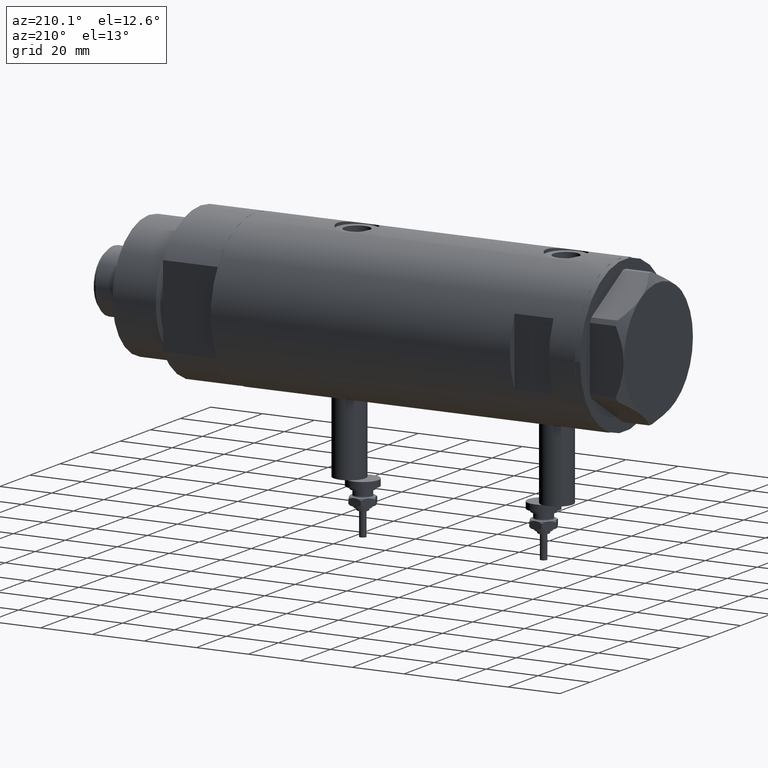
[diagram: clean part render]
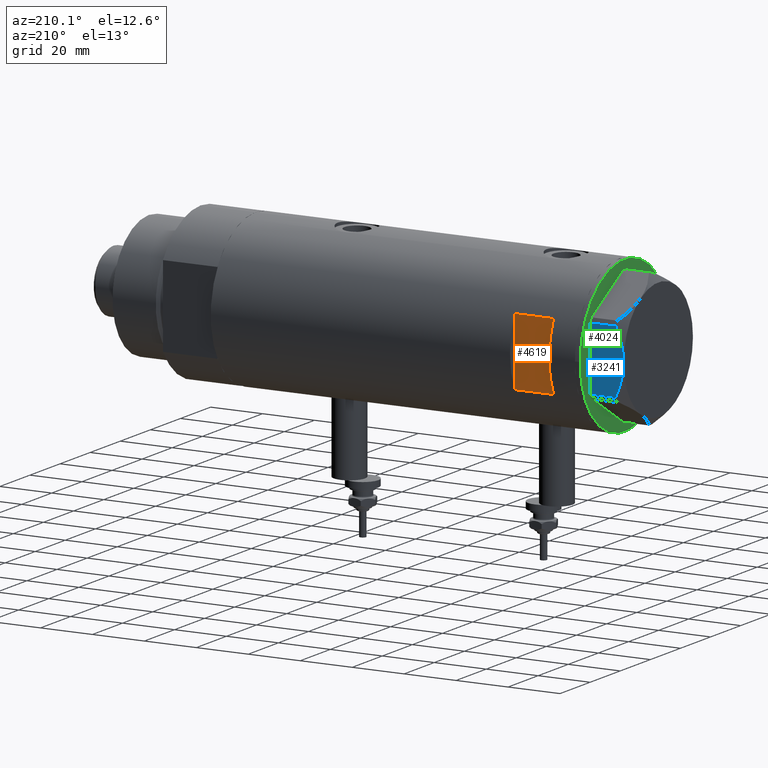
[diagram: same view with three faces highlighted in distinct colors, each labeled with its STEP entity id]
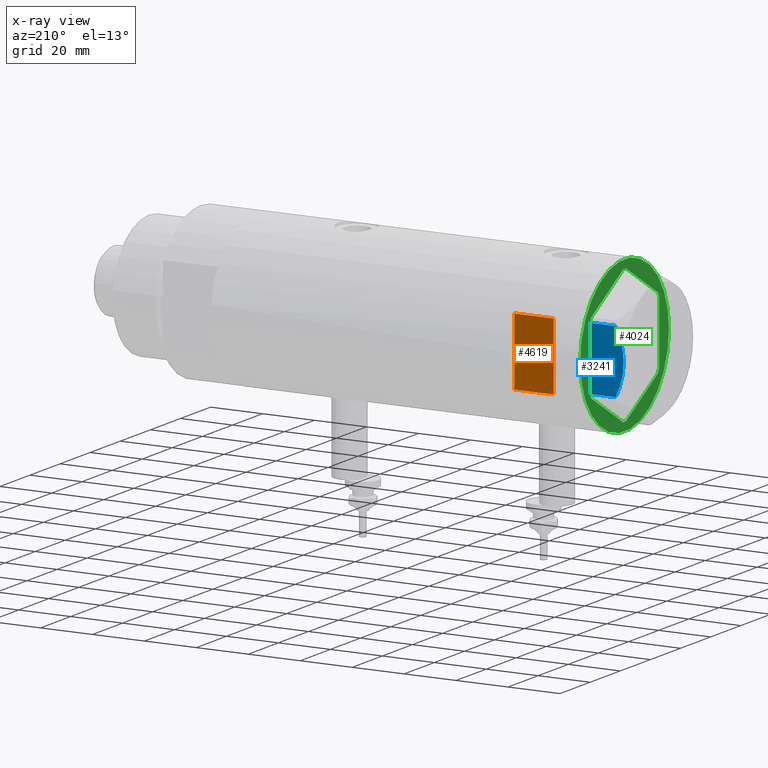
[diagram: x-ray of the same camera — body ghosted, the three highlighted faces saturated]
A machine part, auxiliary view with three faces highlighted in distinct colors.
The next image is the same camera in x-ray (body ghosted, the three faces saturated) — at least one of them is partly hidden behind the body in this view.
Their STEP definitions:

[orange] entity #4619 — the highlighted planar face has unit normal (0, -1, -0).
#78 = VECTOR ( 'NONE', #336, 1000.000000000000000 ) ;
#195 = DIRECTION ( 'NONE',  ( 1.000000000000000000, -0.000000000000000000, -0.000000000000000000 ) ) ;
#221 = CARTESIAN_POINT ( 'NONE',  ( -29.50000000000000355, 26.50000000000000355, 60.09999999999998721 ) ) ;
#312 = ORIENTED_EDGE ( 'NONE', *, *, #2771, .T. ) ;
#336 = DIRECTION ( 'NONE',  ( -0.000000000000000000, -0.000000000000000000, -1.000000000000000000 ) ) ;
#747 = DIRECTION ( 'NONE',  ( 1.000000000000000000, -0.000000000000000000, -0.000000000000000000 ) ) ;
#750 = DIRECTION ( 'NONE',  ( 0.000000000000000000, 0.000000000000000000, 1.000000000000000000 ) ) ;
#812 = DIRECTION ( 'NONE',  ( 0.000000000000000000, -1.000000000000000000, -0.000000000000000000 ) ) ;
#822 = CARTESIAN_POINT ( 'NONE',  ( -12.96148139681574030, 26.50000000000000355, 45.09999999999998721 ) ) ;
#919 = VERTEX_POINT ( 'NONE', #2230 ) ;
#1487 = LINE ( 'NONE', #221, #5725 ) ;
#1690 = DIRECTION ( 'NONE',  ( 0.000000000000000000, 0.000000000000000000, -1.000000000000000000 ) ) ;
#1746 = LINE ( 'NONE', #3066, #3920 ) ;
#1761 = LINE ( 'NONE', #2586, #78 ) ;
#2230 = CARTESIAN_POINT ( 'NONE',  ( -12.96148139681573319, 26.49999999999998934, 60.09999999999998721 ) ) ;
#2521 = EDGE_LOOP ( 'NONE', ( #2917, #4324, #312, #4336 ) ) ;
#2586 = CARTESIAN_POINT ( 'NONE',  ( 12.96148139681573319, 26.49999999999999645, -70.09999999999999432 ) ) ;
#2771 = EDGE_CURVE ( 'NONE', #3975, #919, #1746, .T. ) ;
#2917 = ORIENTED_EDGE ( 'NONE', *, *, #3749, .T. ) ;
#2982 = EDGE_CURVE ( 'NONE', #919, #4934, #1487, .T. ) ;
#3066 = CARTESIAN_POINT ( 'NONE',  ( -12.96148139681573319, 26.49999999999999645, -70.09999999999999432 ) ) ;
#3229 = CARTESIAN_POINT ( 'NONE',  ( -29.50000000000000355, 26.50000000000000355, 60.09999999999998721 ) ) ;
#3659 = AXIS2_PLACEMENT_3D ( 'NONE', #3229, #812, #1690 ) ;
#3749 = EDGE_CURVE ( 'NONE', #4934, #4588, #1761, .T. ) ;
#3920 = VECTOR ( 'NONE', #750, 1000.000000000000000 ) ;
#3975 = VERTEX_POINT ( 'NONE', #822 ) ;
#4072 = PLANE ( 'NONE',  #3659 ) ;
#4324 = ORIENTED_EDGE ( 'NONE', *, *, #5462, .F. ) ;
#4336 = ORIENTED_EDGE ( 'NONE', *, *, #2982, .T. ) ;
#4389 = LINE ( 'NONE', #4990, #4858 ) ;
#4588 = VERTEX_POINT ( 'NONE', #4962 ) ;
#4619 = ADVANCED_FACE ( 'NONE', ( #5918 ), #4072, .F. ) ;
#4858 = VECTOR ( 'NONE', #747, 1000.000000000000000 ) ;
#4934 = VERTEX_POINT ( 'NONE', #5845 ) ;
#4962 = CARTESIAN_POINT ( 'NONE',  ( 12.96148139681571898, 26.50000000000000355, 45.09999999999998721 ) ) ;
#4990 = CARTESIAN_POINT ( 'NONE',  ( -29.50000000000000355, 26.50000000000000355, 45.09999999999998721 ) ) ;
#5462 = EDGE_CURVE ( 'NONE', #3975, #4588, #4389, .T. ) ;
#5725 = VECTOR ( 'NONE', #195, 1000.000000000000000 ) ;
#5845 = CARTESIAN_POINT ( 'NONE',  ( 12.96148139681573319, 26.49999999999998934, 60.09999999999998721 ) ) ;
#5918 = FACE_OUTER_BOUND ( 'NONE', #2521, .T. ) ;

[blue] entity #3241 — the highlighted planar face has unit normal (0, -1, 0).
#63 = EDGE_LOOP ( 'NONE', ( #1121, #2205, #5721, #4359, #1250 ) ) ;
#171 = EDGE_CURVE ( 'NONE', #4343, #2694, #1207, .T. ) ;
#183 = CARTESIAN_POINT ( 'NONE',  ( 23.00000000000004263, -8.748091966971225375, 11.39681897828457124 ) ) ;
#348 = FACE_OUTER_BOUND ( 'NONE', #63, .T. ) ;
#355 = VECTOR ( 'NONE', #1525, 1000.000000000000000 ) ;
#711 = CARTESIAN_POINT ( 'NONE',  ( 22.99999999999996447, -2.122900714017910584, 13.00000000000008882 ) ) ;
#801 = CARTESIAN_POINT ( 'NONE',  ( 22.99999999999992184, 2.643615312305319875, 12.85430456063626714 ) ) ;
#859 = CARTESIAN_POINT ( 'NONE',  ( 22.99999999999986500, 8.252113629125442884, 11.58164206268022056 ) ) ;
#896 = CARTESIAN_POINT ( 'NONE',  ( 22.99999999999985434, 9.734726261263476843, 11.02892470009566139 ) ) ;
#921 = VERTEX_POINT ( 'NONE', #4899 ) ;
#954 = VERTEX_POINT ( 'NONE', #5036 ) ;
#1043 = CARTESIAN_POINT ( 'NONE',  ( 23.00000000000005684, -10.23890159976106240, 10.84081242829091529 ) ) ;
#1095 = VERTEX_POINT ( 'NONE', #5482 ) ;
#1121 = ORIENTED_EDGE ( 'NONE', *, *, #5221, .F. ) ;
#1207 = LINE ( 'NONE', #1733, #3039 ) ;
#1250 = ORIENTED_EDGE ( 'NONE', *, *, #3772, .F. ) ;
#1312 = EDGE_CURVE ( 'NONE', #1095, #954, #2640, .T. ) ;
#1325 = DIRECTION ( 'NONE',  ( 0.000000000000000000, 0.000000000000000000, 1.000000000000000000 ) ) ;
#1408 = EDGE_CURVE ( 'NONE', #2694, #1095, #3390, .T. ) ;
#1525 = DIRECTION ( 'NONE',  ( -1.032024811306395780E-14, 1.000000000000000000, 0.000000000000000000 ) ) ;
#1733 = CARTESIAN_POINT ( 'NONE',  ( 23.00000000000007461, -12.15905619136117721, 13.00000000000000000 ) ) ;
#1896 = CARTESIAN_POINT ( 'NONE',  ( 23.00000000000007461, -12.15905619136117721, 0.000000000000000000 ) ) ;
#2166 = PLANE ( 'NONE',  #4650 ) ;
#2205 = ORIENTED_EDGE ( 'NONE', *, *, #171, .T. ) ;
#2451 = CARTESIAN_POINT ( 'NONE',  ( 23.00000000000008527, -13.27905619136115867, 0.000000000000000000 ) ) ;
#2456 = CARTESIAN_POINT ( 'NONE',  ( 23.00000000000003197, -8.246028007352199651, 11.57113180864690705 ) ) ;
#2619 = CARTESIAN_POINT ( 'NONE',  ( 22.99999999999990052, 5.228918809624289565, 12.43333703384985256 ) ) ;
#2621 = DIRECTION ( 'NONE',  ( 0.000000000000000000, 0.000000000000000000, -1.000000000000000000 ) ) ;
#2640 = LINE ( 'NONE', #5383, #5507 ) ;
#2694 = VERTEX_POINT ( 'NONE', #1896 ) ;
#2703 = CARTESIAN_POINT ( 'NONE',  ( 22.99999999999984368, 11.20155944044835472, 10.42110268263274264 ) ) ;
#2808 = B_SPLINE_CURVE_WITH_KNOTS ( 'NONE', 3,
 ( #5700, #5190, #1043, #183, #2456, #5601, #3831, #3865, #711, #3462 ),
 .UNSPECIFIED., .F., .F.,
 ( 4, 2, 2, 2, 4 ),
 ( 0.03516523594057416324, 0.03831677594541234994, 0.03989254594783143981, 0.04146831595025052969, 0.04777139595992689614 ),
 .UNSPECIFIED. ) ;
#3039 = VECTOR ( 'NONE', #2621, 1000.000000000000000 ) ;
#3121 = CARTESIAN_POINT ( 'NONE',  ( 22.99999999999992539, 2.119709279062088836, 12.90853521217320043 ) ) ;
#3172 = CARTESIAN_POINT ( 'NONE',  ( 22.99999999999994671, 0.5295934231899315225, 13.00000000000009770 ) ) ;
#3241 = ADVANCED_FACE ( 'NONE', ( #348 ), #2166, .F. ) ;
#3390 = LINE ( 'NONE', #2451, #355 ) ;
#3462 = CARTESIAN_POINT ( 'NONE',  ( 22.99999999999995026, 2.373657066004705010E-13, 13.00000000000000000 ) ) ;
#3602 = CARTESIAN_POINT ( 'NONE',  ( 22.99999999999984723, 10.22738952213813590, 10.83247031367476687 ) ) ;
#3772 = EDGE_CURVE ( 'NONE', #921, #954, #4469, .T. ) ;
#3831 = CARTESIAN_POINT ( 'NONE',  ( 23.00000000000001421, -6.734330413511261604, 12.03938974125266448 ) ) ;
#3865 = CARTESIAN_POINT ( 'NONE',  ( 22.99999999999999289, -4.194757081058820170, 12.70300035152520479 ) ) ;
#4011 = DIRECTION ( 'NONE',  ( 1.032024811306395780E-14, -1.000000000000000000, 0.000000000000000000 ) ) ;
#4061 = DIRECTION ( 'NONE',  ( -1.000000000000000000, -1.032024811306395780E-14, 0.000000000000000000 ) ) ;
#4078 = CARTESIAN_POINT ( 'NONE',  ( 22.99999999999993960, 1.063773509315898647, 12.98143808360683060 ) ) ;
#4152 = CARTESIAN_POINT ( 'NONE',  ( 23.00000000000007461, -12.15905619136117544, 9.983800287807614637 ) ) ;
#4343 = VERTEX_POINT ( 'NONE', #4152 ) ;
#4359 = ORIENTED_EDGE ( 'NONE', *, *, #1312, .T. ) ;
#4469 = B_SPLINE_CURVE_WITH_KNOTS ( 'NONE', 3,
 ( #5814, #3172, #4078, #3121, #801, #4967, #2619, #5869, #859, #896, #3602, #2703, #4904, #4498 ),
 .UNSPECIFIED., .F., .F.,
 ( 4, 2, 2, 2, 2, 2, 4 ),
 ( 0.04777139595992689614, 0.04934380568070229761, 0.05091621540147769215, 0.05406103484302849510, 0.05720585428457929111, 0.05877826400535468565, 0.06035067372613008713 ),
 .UNSPECIFIED. ) ;
#4498 = CARTESIAN_POINT ( 'NONE',  ( 22.99999999999982236, 12.15905619136166038, 9.983800287807609308 ) ) ;
#4650 = AXIS2_PLACEMENT_3D ( 'NONE', #4940, #4061, #4011 ) ;
#4899 = CARTESIAN_POINT ( 'NONE',  ( 22.99999999999995026, 2.373657066004705010E-13, 13.00000000000000000 ) ) ;
#4904 = CARTESIAN_POINT ( 'NONE',  ( 22.99999999999982947, 11.68282849742354301, 10.20637235269540888 ) ) ;
#4940 = CARTESIAN_POINT ( 'NONE',  ( 23.00000000000008527, -13.27905619136115867, 13.00000000000000000 ) ) ;
#4967 = CARTESIAN_POINT ( 'NONE',  ( 22.99999999999990763, 4.203926054642130872, 12.64168122312251263 ) ) ;
#5036 = CARTESIAN_POINT ( 'NONE',  ( 22.99999999999982236, 12.15905619136166038, 9.983800287807609308 ) ) ;
#5190 = CARTESIAN_POINT ( 'NONE',  ( 23.00000000000006750, -11.20825071633899483, 10.42817330637845608 ) ) ;
#5221 = EDGE_CURVE ( 'NONE', #4343, #921, #2808, .T. ) ;
#5383 = CARTESIAN_POINT ( 'NONE',  ( 22.99999999999982236, 12.15905619136166571, 13.00000000000000000 ) ) ;
#5482 = CARTESIAN_POINT ( 'NONE',  ( 22.99999999999982236, 12.15905619136166571, 0.000000000000000000 ) ) ;
#5507 = VECTOR ( 'NONE', #1325, 1000.000000000000000 ) ;
#5601 = CARTESIAN_POINT ( 'NONE',  ( 23.00000000000002132, -7.239756182922042704, 11.89218606342284978 ) ) ;
#5700 = CARTESIAN_POINT ( 'NONE',  ( 23.00000000000007461, -12.15905619136117544, 9.983800287807614637 ) ) ;
#5721 = ORIENTED_EDGE ( 'NONE', *, *, #1408, .T. ) ;
#5814 = CARTESIAN_POINT ( 'NONE',  ( 22.99999999999995026, 2.373657066004705010E-13, 13.00000000000000000 ) ) ;
#5869 = CARTESIAN_POINT ( 'NONE',  ( 22.99999999999987210, 7.253003311474555126, 11.90327681034763430 ) ) ;

[green] entity #4024 — the highlighted planar face has unit normal (1, 0, -0).
#44 = EDGE_CURVE ( 'NONE', #2943, #4399, #3299, .T. ) ;
#193 = DIRECTION ( 'NONE',  ( 0.4999999999999986677, 0.8660254037844392627, -0.000000000000000000 ) ) ;
#228 = FACE_BOUND ( 'NONE', #2189, .T. ) ;
#251 = VECTOR ( 'NONE', #5323, 1000.000000000000000 ) ;
#286 = VERTEX_POINT ( 'NONE', #1876 ) ;
#355 = VECTOR ( 'NONE', #1525, 1000.000000000000000 ) ;
#361 = EDGE_CURVE ( 'NONE', #2943, #1005, #2601, .T. ) ;
#404 = CARTESIAN_POINT ( 'NONE',  ( -22.99999999999990408, -13.27905619136147841, 0.000000000000000000 ) ) ;
#411 = ORIENTED_EDGE ( 'NONE', *, *, #44, .T. ) ;
#434 = CARTESIAN_POINT ( 'NONE',  ( -22.99999999999999289, 12.15905619136131754, 0.000000000000000000 ) ) ;
#517 = ORIENTED_EDGE ( 'NONE', *, *, #2289, .F. ) ;
#599 = EDGE_LOOP ( 'NONE', ( #4369, #2990 ) ) ;
#625 = DIRECTION ( 'NONE',  ( -0.4999999999999915623, -0.8660254037844434816, -0.000000000000000000 ) ) ;
#633 = CARTESIAN_POINT ( 'NONE',  ( 29.50000000000000355, 0.000000000000000000, 0.000000000000000000 ) ) ;
#639 = LINE ( 'NONE', #1138, #1716 ) ;
#729 = ORIENTED_EDGE ( 'NONE', *, *, #1408, .F. ) ;
#894 = LINE ( 'NONE', #2701, #251 ) ;
#935 = CARTESIAN_POINT ( 'NONE',  ( 22.03005154776153773, -13.83905619136115561, 0.000000000000000000 ) ) ;
#953 = EDGE_CURVE ( 'NONE', #5437, #1005, #1459, .T. ) ;
#1005 = VERTEX_POINT ( 'NONE', #5441 ) ;
#1006 = CARTESIAN_POINT ( 'NONE',  ( 1.859873512960652550E-13, -25.99811238272274139, 0.000000000000000000 ) ) ;
#1022 = CARTESIAN_POINT ( 'NONE',  ( -22.03005154776132102, -13.83905619136147536, 0.000000000000000000 ) ) ;
#1026 = VECTOR ( 'NONE', #2223, 1000.000000000000000 ) ;
#1084 = LINE ( 'NONE', #4697, #5624 ) ;
#1095 = VERTEX_POINT ( 'NONE', #5482 ) ;
#1098 = LINE ( 'NONE', #2904, #4280 ) ;
#1115 = EDGE_CURVE ( 'NONE', #2694, #5779, #1098, .T. ) ;
#1138 = CARTESIAN_POINT ( 'NONE',  ( 1.854543075583504180E-13, -26.55811238272274366, 0.000000000000000000 ) ) ;
#1257 = EDGE_CURVE ( 'NONE', #3703, #4399, #894, .T. ) ;
#1401 = CARTESIAN_POINT ( 'NONE',  ( 22.51502577388055926, 12.99905619136160162, 0.000000000000000000 ) ) ;
#1408 = EDGE_CURVE ( 'NONE', #2694, #1095, #3390, .T. ) ;
#1424 = VERTEX_POINT ( 'NONE', #633 ) ;
#1450 = CIRCLE ( 'NONE', #4564, 29.50000000000000355 ) ;
#1459 = LINE ( 'NONE', #1006, #4364 ) ;
#1525 = DIRECTION ( 'NONE',  ( -1.032024811306395780E-14, 1.000000000000000000, 0.000000000000000000 ) ) ;
#1567 = VERTEX_POINT ( 'NONE', #4459 ) ;
#1575 = CARTESIAN_POINT ( 'NONE',  ( 0.000000000000000000, 0.000000000000000000, 0.000000000000000000 ) ) ;
#1641 = PLANE ( 'NONE',  #3272 ) ;
#1646 = CIRCLE ( 'NONE', #3267, 29.50000000000000355 ) ;
#1716 = VECTOR ( 'NONE', #2519, 999.9999999999998863 ) ;
#1722 = VECTOR ( 'NONE', #193, 1000.000000000000227 ) ;
#1876 = CARTESIAN_POINT ( 'NONE',  ( 0.9699484522385886098, 25.99811238272273783, 0.000000000000000000 ) ) ;
#1896 = CARTESIAN_POINT ( 'NONE',  ( 23.00000000000007461, -12.15905619136117721, 0.000000000000000000 ) ) ;
#1968 = CARTESIAN_POINT ( 'NONE',  ( 0.000000000000000000, 0.000000000000000000, 0.000000000000000000 ) ) ;
#2028 = ORIENTED_EDGE ( 'NONE', *, *, #2921, .T. ) ;
#2075 = DIRECTION ( 'NONE',  ( 0.000000000000000000, 0.000000000000000000, -1.000000000000000000 ) ) ;
#2134 = LINE ( 'NONE', #5761, #1722 ) ;
#2187 = ORIENTED_EDGE ( 'NONE', *, *, #3741, .T. ) ;
#2189 = EDGE_LOOP ( 'NONE', ( #2985, #2028, #729, #3622, #517, #5450, #3504, #411, #5863, #3949, #5542, #2187 ) ) ;
#2223 = DIRECTION ( 'NONE',  ( 0.8660254037844415942, -0.4999999999999950595, 0.000000000000000000 ) ) ;
#2224 = EDGE_CURVE ( 'NONE', #3958, #4151, #3358, .T. ) ;
#2254 = LINE ( 'NONE', #1401, #4380 ) ;
#2289 = EDGE_CURVE ( 'NONE', #5437, #5779, #639, .T. ) ;
#2339 = DIRECTION ( 'NONE',  ( -0.8660254037844415942, 0.4999999999999949485, 0.000000000000000000 ) ) ;
#2367 = CARTESIAN_POINT ( 'NONE',  ( -9.299367564803055752E-14, 25.99811238272273428, 0.000000000000000000 ) ) ;
#2402 = DIRECTION ( 'NONE',  ( -0.8660254037844380415, -0.5000000000000008882, 0.000000000000000000 ) ) ;
#2448 = FACE_OUTER_BOUND ( 'NONE', #599, .T. ) ;
#2451 = CARTESIAN_POINT ( 'NONE',  ( 23.00000000000008527, -13.27905619136115867, 0.000000000000000000 ) ) ;
#2519 = DIRECTION ( 'NONE',  ( 0.8660254037844345998, 0.5000000000000069944, 0.000000000000000000 ) ) ;
#2583 = EDGE_CURVE ( 'NONE', #3703, #4151, #2134, .T. ) ;
#2601 = LINE ( 'NONE', #404, #1026 ) ;
#2694 = VERTEX_POINT ( 'NONE', #1896 ) ;
#2701 = CARTESIAN_POINT ( 'NONE',  ( -22.99999999999999645, 13.27905619136132032, 0.000000000000000000 ) ) ;
#2706 = EDGE_CURVE ( 'NONE', #1567, #286, #1084, .T. ) ;
#2843 = CARTESIAN_POINT ( 'NONE',  ( 0.000000000000000000, 26.55811238272274366, 0.000000000000000000 ) ) ;
#2855 = CARTESIAN_POINT ( 'NONE',  ( -22.99999999999990763, -12.15905619136148985, 0.000000000000000000 ) ) ;
#2904 = CARTESIAN_POINT ( 'NONE',  ( 22.51502577388080795, -12.99905619136115398, 0.000000000000000000 ) ) ;
#2908 = DIRECTION ( 'NONE',  ( 0.000000000000000000, 0.000000000000000000, -1.000000000000000000 ) ) ;
#2921 = EDGE_CURVE ( 'NONE', #1567, #1095, #2254, .T. ) ;
#2943 = VERTEX_POINT ( 'NONE', #1022 ) ;
#2985 = ORIENTED_EDGE ( 'NONE', *, *, #2706, .F. ) ;
#2990 = ORIENTED_EDGE ( 'NONE', *, *, #3647, .F. ) ;
#3267 = AXIS2_PLACEMENT_3D ( 'NONE', #1968, #3761, #4710 ) ;
#3272 = AXIS2_PLACEMENT_3D ( 'NONE', #3877, #2908, #5258 ) ;
#3299 = LINE ( 'NONE', #4203, #4969 ) ;
#3305 = CARTESIAN_POINT ( 'NONE',  ( -29.50000000000000355, 3.612708057484692393E-15, 0.000000000000000000 ) ) ;
#3331 = EDGE_CURVE ( 'NONE', #1424, #5908, #1450, .T. ) ;
#3358 = LINE ( 'NONE', #2843, #3635 ) ;
#3390 = LINE ( 'NONE', #2451, #355 ) ;
#3504 = ORIENTED_EDGE ( 'NONE', *, *, #361, .F. ) ;
#3622 = ORIENTED_EDGE ( 'NONE', *, *, #1115, .T. ) ;
#3635 = VECTOR ( 'NONE', #2402, 1000.000000000000227 ) ;
#3647 = EDGE_CURVE ( 'NONE', #5908, #1424, #1646, .T. ) ;
#3661 = LINE ( 'NONE', #2367, #5433 ) ;
#3703 = VERTEX_POINT ( 'NONE', #434 ) ;
#3741 = EDGE_CURVE ( 'NONE', #3958, #286, #3661, .T. ) ;
#3761 = DIRECTION ( 'NONE',  ( 0.000000000000000000, 0.000000000000000000, -1.000000000000000000 ) ) ;
#3848 = CARTESIAN_POINT ( 'NONE',  ( 0.9699484522387533669, -25.99811238272273428, 0.000000000000000000 ) ) ;
#3877 = CARTESIAN_POINT ( 'NONE',  ( 0.000000000000000000, 0.000000000000000000, 0.000000000000000000 ) ) ;
#3949 = ORIENTED_EDGE ( 'NONE', *, *, #2583, .T. ) ;
#3958 = VERTEX_POINT ( 'NONE', #4373 ) ;
#4024 = ADVANCED_FACE ( 'NONE', ( #228, #2448 ), #1641, .F. ) ;
#4151 = VERTEX_POINT ( 'NONE', #4345 ) ;
#4203 = CARTESIAN_POINT ( 'NONE',  ( -22.51502577388055215, -12.99905619136159629, 0.000000000000000000 ) ) ;
#4218 = DIRECTION ( 'NONE',  ( -1.000000000000000000, -7.153879041605523216E-15, -0.000000000000000000 ) ) ;
#4280 = VECTOR ( 'NONE', #625, 1000.000000000000000 ) ;
#4299 = DIRECTION ( 'NONE',  ( -0.5000000000000086597, 0.8660254037844337116, -0.000000000000000000 ) ) ;
#4345 = CARTESIAN_POINT ( 'NONE',  ( -22.03005154776141339, 13.83905619136132792, 0.000000000000000000 ) ) ;
#4364 = VECTOR ( 'NONE', #4218, 1000.000000000000000 ) ;
#4369 = ORIENTED_EDGE ( 'NONE', *, *, #3331, .F. ) ;
#4373 = CARTESIAN_POINT ( 'NONE',  ( -0.9699484522385893870, 25.99811238272273073, 0.000000000000000000 ) ) ;
#4380 = VECTOR ( 'NONE', #5030, 999.9999999999998863 ) ;
#4399 = VERTEX_POINT ( 'NONE', #2855 ) ;
#4459 = CARTESIAN_POINT ( 'NONE',  ( 22.03005154776124996, 13.83905619136162635, 0.000000000000000000 ) ) ;
#4564 = AXIS2_PLACEMENT_3D ( 'NONE', #1575, #2075, #4792 ) ;
#4697 = CARTESIAN_POINT ( 'NONE',  ( 22.99999999999981171, 13.27905619136164184, 0.000000000000000000 ) ) ;
#4710 = DIRECTION ( 'NONE',  ( -1.000000000000000000, 0.000000000000000000, 0.000000000000000000 ) ) ;
#4792 = DIRECTION ( 'NONE',  ( -1.000000000000000000, 0.000000000000000000, 0.000000000000000000 ) ) ;
#4969 = VECTOR ( 'NONE', #4299, 1000.000000000000000 ) ;
#5030 = DIRECTION ( 'NONE',  ( 0.5000000000000086597, -0.8660254037844337116, -0.000000000000000000 ) ) ;
#5258 = DIRECTION ( 'NONE',  ( -1.000000000000000000, 0.000000000000000000, -0.000000000000000000 ) ) ;
#5294 = DIRECTION ( 'NONE',  ( 1.000000000000000000, 3.576939520802682722E-15, -0.000000000000000000 ) ) ;
#5323 = DIRECTION ( 'NONE',  ( 3.527173405730720141E-15, -1.000000000000000000, 0.000000000000000000 ) ) ;
#5433 = VECTOR ( 'NONE', #5294, 1000.000000000000000 ) ;
#5437 = VERTEX_POINT ( 'NONE', #3848 ) ;
#5441 = CARTESIAN_POINT ( 'NONE',  ( -0.9699484522383873264, -25.99811238272275205, 0.000000000000000000 ) ) ;
#5450 = ORIENTED_EDGE ( 'NONE', *, *, #953, .T. ) ;
#5482 = CARTESIAN_POINT ( 'NONE',  ( 22.99999999999982236, 12.15905619136166571, 0.000000000000000000 ) ) ;
#5542 = ORIENTED_EDGE ( 'NONE', *, *, #2224, .F. ) ;
#5624 = VECTOR ( 'NONE', #2339, 999.9999999999998863 ) ;
#5761 = CARTESIAN_POINT ( 'NONE',  ( -22.51502577388069781, 12.99905619136134050, 0.000000000000000000 ) ) ;
#5779 = VERTEX_POINT ( 'NONE', #935 ) ;
#5863 = ORIENTED_EDGE ( 'NONE', *, *, #1257, .F. ) ;
#5908 = VERTEX_POINT ( 'NONE', #3305 ) ;